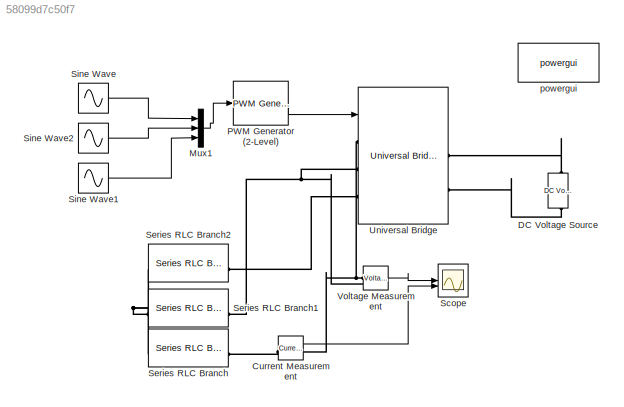
MODEL slx_58099d7c50f7
KIND model
CONFIG AbsTol = auto
CONFIG EnableMultiTasking = off
CONFIG FixedStep = auto
CONFIG MaxStep = auto
CONFIG MinStep = auto
CONFIG RelTol = 1e-3
CONFIG SampleTimeConstraint = Unconstrained
CONFIG SolverName = VariableStepAuto
CONFIG StartTime = 0.0
CONFIG StopTime = 0.1
BLOCK [Reference] Current Measurement  REF=spsCurrentMeasurementLib/Current Measurement
  LibrarySourceBlock = sps_lib/Sensors and Measurements/Current Measurement
  SourceBlock = spsCurrentMeasurementLib/Current Measurement
  SourceType = Current Measurement
  UserDataPersistent = on
BLOCK [Reference] DC Voltage Source  REF=spsDCVoltageSourceLib/DC Voltage Source
  LibrarySourceBlock = sps_lib/Sources/DC Voltage Source
  SourceBlock = spsDCVoltageSourceLib/DC Voltage Source
  SourceType = DC Voltage Source
BLOCK [Mux] Mux1
  DisplayOption = bar
  Inputs = 3
BLOCK [Reference] PWM Generator (2-Level)  REF=spsPWMGenerator2LevelLib/PWM Generator
(2-Level)
  LibrarySourceBlock = sps_lib/Power Electronics/Power Electronics Control/PWM Generator\n(2-Level)
  SourceBlock = spsPWMGenerator2LevelLib/PWM Generator\n(2-Level)
  SourceType = PWM Generator (2-Level)
BLOCK [Scope] Scope
  Floating = off
  NumInputPorts = 2
  ScopeSpecificationString = Simulink.scopes.TimeScopeBlockCfg('CurrentConfiguration', extmgr.ConfigurationSet(extmgr.Configuration('Core','General UI',true),extmgr.Configuration('Core','Source UI',true),extmgr.Configuration('Sources','WiredSimulink',true),extmgr.Configuration('Visuals','Time Domain',true,'SerializedDisplays',{struct('MinYLimReal','-125.00209','MaxYLimReal','125.00215','YLabelReal','','MinYLimMag',' 0.00000',...<+2109ch>
BLOCK [Reference] Series RLC Branch  REF=spsSeriesRLCBranchLib/Series RLC Branch
  LibrarySourceBlock = sps_lib/Passives/Series RLC Branch
  SourceBlock = spsSeriesRLCBranchLib/Series RLC Branch
  SourceType = Series RLC Branch
BLOCK [Reference] Series RLC Branch1  REF=spsSeriesRLCBranchLib/Series RLC Branch
  LibrarySourceBlock = sps_lib/Passives/Series RLC Branch
  SourceBlock = spsSeriesRLCBranchLib/Series RLC Branch
  SourceType = Series RLC Branch
BLOCK [Reference] Series RLC Branch2  REF=spsSeriesRLCBranchLib/Series RLC Branch
  LibrarySourceBlock = sps_lib/Passives/Series RLC Branch
  SourceBlock = spsSeriesRLCBranchLib/Series RLC Branch
  SourceType = Series RLC Branch
BLOCK [Sin] Sine Wave
  Amplitude = 0.8
  Frequency = 314.159
  SampleTime = 0
BLOCK [Sin] Sine Wave1
  Amplitude = 0.8
  Frequency = 314.159
  Phase = 2*pi/3
  SampleTime = 0
BLOCK [Sin] Sine Wave2
  Amplitude = 0.8
  Frequency = 314.159
  Phase = -2*pi/3
  SampleTime = 0
BLOCK [Reference] Universal Bridge  REF=spsUniversalBridgeLib/Universal Bridge
  LibrarySourceBlock = sps_lib/Power Electronics/Universal Bridge
  SourceBlock = spsUniversalBridgeLib/Universal Bridge
  SourceType = Universal Bridge
BLOCK [Reference] Voltage Measurement  REF=spsVoltageMeasurementLib/Voltage Measurement
  LibrarySourceBlock = sps_lib/Sensors and Measurements/Voltage Measurement
  SourceBlock = spsVoltageMeasurementLib/Voltage Measurement
  SourceType = Voltage Measurement
  UserDataPersistent = on
BLOCK [Reference] powergui  REF=sps_lib/powergui
  Priority = 1
  SourceBlock = sps_lib/powergui
  SourceType = PSB option menu block
LINE Current Measurement:1 -> Scope:2
LINE Mux1:1 -> PWM Generator (2-Level):1
LINE PWM Generator (2-Level):1 -> Universal Bridge:1
LINE Sine Wave1:1 -> Mux1:3
LINE Sine Wave2:1 -> Mux1:2
LINE Sine Wave:1 -> Mux1:1
LINE Voltage Measurement:1 -> Scope:1
PLINE Current Measurement:LConn1 -- Series RLC Branch:RConn1
PNET net1: Current Measurement:RConn1 -- Universal Bridge:LConn1 -- Voltage Measurement:LConn1
PLINE DC Voltage Source:LConn1 -- Universal Bridge:RConn2
PLINE DC Voltage Source:RConn1 -- Universal Bridge:RConn1
PNET net2: Series RLC Branch1:LConn1 -- Series RLC Branch2:LConn1 -- Series RLC Branch:LConn1
PNET net3: Series RLC Branch1:RConn1 -- Universal Bridge:LConn2 -- Voltage Measurement:LConn2
PLINE Series RLC Branch2:RConn1 -- Universal Bridge:LConn3
note: PNET lines group multi-terminal physical nets as a canonical sorted terminal list (undirected conserving connections); 2-terminal nets keep the pairwise PLINE form
